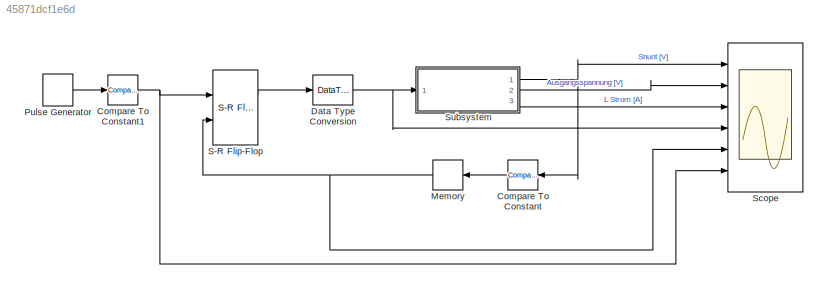
MODEL slx_45871dcf1e6d
KIND model
CONFIG AbsTol = auto
CONFIG FixedStep = auto
CONFIG InitFcn = Aufgabe4_calc
CONFIG MaxStep = auto
CONFIG MinStep = auto
CONFIG RelTol = 1e-3
CONFIG SampleTimeConstraint = Unconstrained
CONFIG Solver = VariableStepAuto
CONFIG SolverMode = Auto
CONFIG SolverName = VariableStepAuto
CONFIG StartTime = 0.0
CONFIG StopTime = 0.005
BLOCK [Reference] Compare To Constant  REF=simulink/Logic and Bit
Operations/Compare
To Constant
  Ports = [1, 1]
  SourceBlock = simulink/Logic and Bit\nOperations/Compare\nTo Constant
  SourceType = Compare To Constant
BLOCK [Reference] Compare To Constant1  REF=simulink/Logic and Bit
Operations/Compare
To Constant
  Ports = [1, 1]
  SourceBlock = simulink/Logic and Bit\nOperations/Compare\nTo Constant
  SourceType = Compare To Constant
BLOCK [DataTypeConversion] Data Type Conversion
  OutDataTypeStr = double
  RndMeth = Floor
  SaturateOnIntegerOverflow = off
BLOCK [Memory] Memory
BLOCK [DiscretePulseGenerator] Pulse Generator
  Amplitude = 10
  Period = Twidth
  PhaseDelay = Twidth
  Ports = [0, 1]
  PulseType = Time based
  PulseWidth = duty_cycle *100
BLOCK [Reference] S-R Flip-Flop  REF=simulink_extras/Flip Flops/S-R
Flip-Flop
  Ports = [2, 2]
  SourceBlock = simulink_extras/Flip Flops/S-R\nFlip-Flop
  SourceType = SRFlipFlop
BLOCK [Scope] Scope
  NumInputPorts = 6
  Ports = [6]
  ScopeSpecificationString = Simulink.scopes.TimeScopeBlockCfg('CurrentConfiguration', extmgr.ConfigurationSet(extmgr.Configuration('Core','General UI',true),extmgr.Configuration('Core','Source UI',true),extmgr.Configuration('Sources','WiredSimulink',true),extmgr.Configuration('Visuals','Time Domain',true,'SerializedDisplays',{struct('MinYLimReal','-12.40245','MaxYLimReal','111.62209','YLabelReal','','MinYLimMag','0.00000','M...<+3486ch>
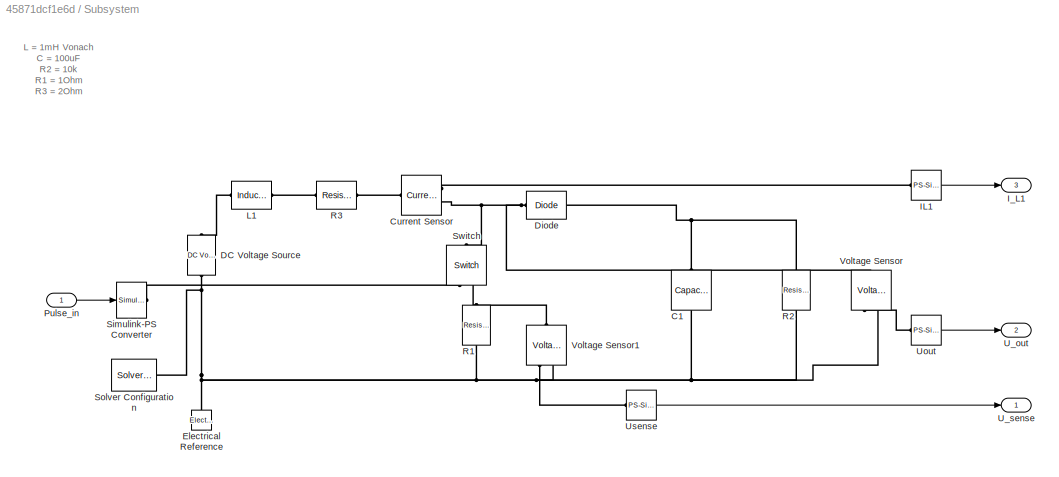
BLOCK [SubSystem] Subsystem
  Ports = [1, 3]
  RequestExecContextInheritance = off
  Variant = off
BLOCK [Reference] Subsystem/C1  REF=fl_lib/Electrical/Electrical Elements/Capacitor
  Ports = [0, 0, 0, 0, 0, 1, 1]
  SourceBlock = fl_lib/Electrical/Electrical Elements/Capacitor
  SourceType = Capacitor
BLOCK [Reference] Subsystem/Current Sensor  REF=fl_lib/Electrical/Electrical Sensors/Current Sensor
  Ports = [0, 0, 0, 0, 0, 1, 2]
  SourceBlock = fl_lib/Electrical/Electrical Sensors/Current Sensor
  SourceType = Current Sensor
BLOCK [Reference] Subsystem/DC Voltage Source  REF=fl_lib/Electrical/Electrical Sources/DC Voltage Source
  Ports = [0, 0, 0, 0, 0, 1, 1]
  SourceBlock = fl_lib/Electrical/Electrical Sources/DC Voltage Source
  SourceType = DC Voltage Source
BLOCK [Reference] Subsystem/Diode  REF=elec_lib/Semiconductor
Devices/Diode
  Ports = [0, 0, 0, 0, 0, 1, 1]
  SourceBlock = elec_lib/Semiconductor\nDevices/Diode
  SourceType = Diode
BLOCK [Reference] Subsystem/Electrical Reference  REF=fl_lib/Electrical/Electrical Elements/Electrical Reference
  Ports = [0, 0, 0, 0, 0, 1]
  SourceBlock = fl_lib/Electrical/Electrical Elements/Electrical Reference
  SourceType = Electrical Reference
BLOCK [Reference] Subsystem/IL1  REF=nesl_utility/PS-Simulink
Converter
  Ports = [0, 1, 0, 0, 0, 1]
  SourceBlock = nesl_utility/PS-Simulink\nConverter
  SourceType = PS-Simulink\nConverter
BLOCK [Outport] Subsystem/I_L1
  IconDisplay = Port number
  Port = 3
BLOCK [Reference] Subsystem/L1  REF=fl_lib/Electrical/Electrical Elements/Inductor
  Ports = [0, 0, 0, 0, 0, 1, 1]
  SourceBlock = fl_lib/Electrical/Electrical Elements/Inductor
  SourceType = Inductor
BLOCK [Inport] Subsystem/Pulse_in
  IconDisplay = Port number
BLOCK [Reference] Subsystem/R1  REF=fl_lib/Electrical/Electrical Elements/Resistor
  Ports = [0, 0, 0, 0, 0, 1, 1]
  SourceBlock = fl_lib/Electrical/Electrical Elements/Resistor
  SourceType = Resistor
BLOCK [Reference] Subsystem/R2  REF=fl_lib/Electrical/Electrical Elements/Resistor
  Ports = [0, 0, 0, 0, 0, 1, 1]
  SourceBlock = fl_lib/Electrical/Electrical Elements/Resistor
  SourceType = Resistor
BLOCK [Reference] Subsystem/R3  REF=fl_lib/Electrical/Electrical Elements/Resistor
  Ports = [0, 0, 0, 0, 0, 1, 1]
  SourceBlock = fl_lib/Electrical/Electrical Elements/Resistor
  SourceType = Resistor
BLOCK [Reference] Subsystem/Simulink-PS Converter  REF=nesl_utility/Simulink-PS
Converter
  Ports = [1, 0, 0, 0, 0, 0, 1]
  SourceBlock = nesl_utility/Simulink-PS\nConverter
  SourceType = Simulink-PS\nConverter
BLOCK [Reference] Subsystem/Solver Configuration  REF=nesl_utility/Solver
Configuration
  Ports = [0, 0, 0, 0, 0, 0, 1]
  SourceBlock = nesl_utility/Solver\nConfiguration
  SourceType = Solver\nConfiguration
BLOCK [Reference] Subsystem/Switch  REF=fl_lib/Electrical/Electrical Elements/Switch
  Ports = [0, 0, 0, 0, 0, 1, 2]
  SourceBlock = fl_lib/Electrical/Electrical Elements/Switch
  SourceType = Switch
BLOCK [Outport] Subsystem/U_out
  IconDisplay = Port number
  Port = 2
BLOCK [Outport] Subsystem/U_sense
  IconDisplay = Port number
BLOCK [Reference] Subsystem/Uout  REF=nesl_utility/PS-Simulink
Converter
  Ports = [0, 1, 0, 0, 0, 1]
  SourceBlock = nesl_utility/PS-Simulink\nConverter
  SourceType = PS-Simulink\nConverter
BLOCK [Reference] Subsystem/Usense  REF=nesl_utility/PS-Simulink
Converter
  Ports = [0, 1, 0, 0, 0, 1]
  SourceBlock = nesl_utility/PS-Simulink\nConverter
  SourceType = PS-Simulink\nConverter
BLOCK [Reference] Subsystem/Voltage Sensor  REF=fl_lib/Electrical/Electrical Sensors/Voltage Sensor
  Ports = [0, 0, 0, 0, 0, 1, 2]
  SourceBlock = fl_lib/Electrical/Electrical Sensors/Voltage Sensor
  SourceType = Voltage Sensor
BLOCK [Reference] Subsystem/Voltage Sensor1  REF=fl_lib/Electrical/Electrical Sensors/Voltage Sensor
  Ports = [0, 0, 0, 0, 0, 1, 2]
  SourceBlock = fl_lib/Electrical/Electrical Sensors/Voltage Sensor
  SourceType = Voltage Sensor
ANNOTATION Subsystem: L = 1mH Vonach C = 100uF R2 = 10k R1 = 1Ohm R3 = 2Ohm
NET Compare To Constant1:1 -> S-R Flip-Flop:1, Scope:6
LINE Compare To Constant:1 -> Memory:1
NET Data Type Conversion:1 -> Scope:4, Subsystem:1
NET Memory:1 -> S-R Flip-Flop:2, Scope:5
LINE Pulse Generator:1 -> Compare To Constant1:1
LINE S-R Flip-Flop:1 -> Data Type Conversion:1
LINE Subsystem/IL1:1 -> Subsystem/I_L1:1
LINE Subsystem/Pulse_in:1 -> Subsystem/Simulink-PS Converter:1
LINE Subsystem/Uout:1 -> Subsystem/U_out:1
LINE Subsystem/Usense:1 -> Subsystem/U_sense:1
NET Subsystem:1 -> Compare To Constant:1, Scope:1
LINE Subsystem:2 -> Scope:2
LINE Subsystem:3 -> Scope:3
PNET net1: Subsystem/C1:LConn1 -- Subsystem/Diode:RConn1 -- Subsystem/R2:LConn1
PNET net2: Subsystem/C1:RConn1 -- Subsystem/DC Voltage Source:RConn1 -- Subsystem/Electrical Reference:LConn1 -- Subsystem/R1:RConn1 -- Subsystem/R2:RConn1 -- Subsystem/Solver Configuration:RConn1 -- Subsystem/Voltage Sensor1:RConn2 -- Subsystem/Voltage Sensor:RConn2
PLINE Subsystem/Current Sensor:LConn1 -- Subsystem/R3:RConn1
PLINE Subsystem/Current Sensor:RConn1 -- Subsystem/IL1:LConn1
PNET net3: Subsystem/Current Sensor:RConn2 -- Subsystem/Diode:LConn1 -- Subsystem/Switch:LConn1 -- Subsystem/Voltage Sensor:LConn1
PLINE Subsystem/DC Voltage Source:LConn1 -- Subsystem/L1:LConn1
PLINE Subsystem/L1:RConn1 -- Subsystem/R3:LConn1
PNET net4: Subsystem/R1:LConn1 -- Subsystem/Switch:RConn2 -- Subsystem/Voltage Sensor1:LConn1
PLINE Subsystem/Simulink-PS Converter:RConn1 -- Subsystem/Switch:RConn1
PLINE Subsystem/Uout:LConn1 -- Subsystem/Voltage Sensor:RConn1
PLINE Subsystem/Usense:LConn1 -- Subsystem/Voltage Sensor1:RConn1
note: NET lines group one-source signal fan-out (src -> all destinations, sorted); 1:1 wires keep LINE; PNET lines group multi-terminal physical nets as a canonical sorted terminal list (undirected conserving connections); 2-terminal nets keep the pairwise PLINE form
